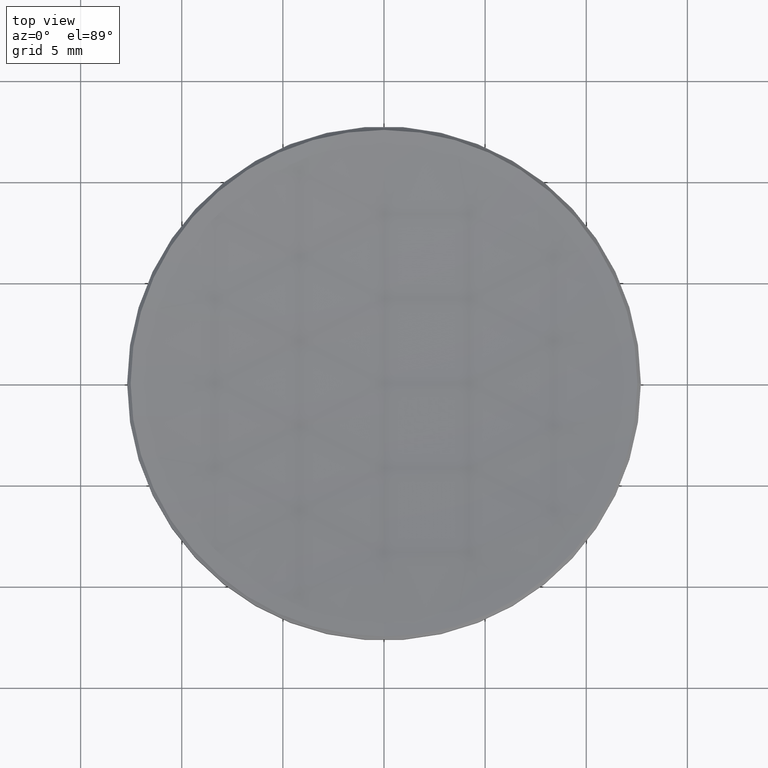
[diagram: clean part render]
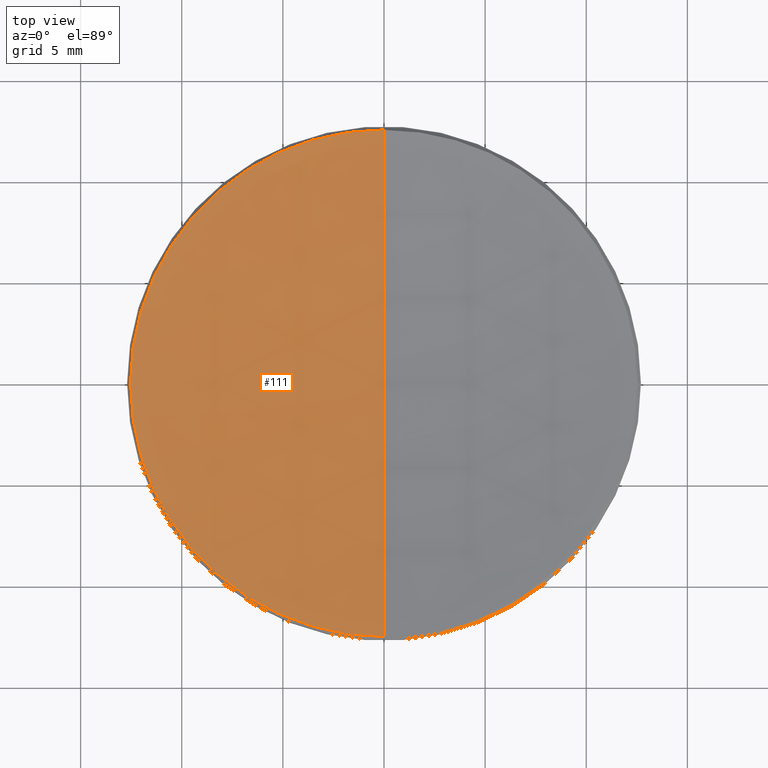
[diagram: same view with one face highlighted and labeled with its STEP entity id]
A machine part, top view. The second image highlights one B-rep face of the part: STEP entity #111.
In plain terms, the highlighted spherical surface has radius 82.23 mm.
Its self-contained STEP definition (entity closure, byte-faithful):
#3 = FACE_OUTER_BOUND ( 'NONE', #309, .T. ) ;
#25 = VERTEX_POINT ( 'NONE', #260 ) ;
#28 = CIRCLE ( 'NONE', #197, 12.52687420083785419 ) ;
#37 = DIRECTION ( 'NONE',  ( -1.224646799147353207E-16, -1.000000000000000000, 0.000000000000000000 ) ) ;
#38 = DIRECTION ( 'NONE',  ( -0.000000000000000000, -0.000000000000000000, 1.000000000000000000 ) ) ;
#43 = CARTESIAN_POINT ( 'NONE',  ( 0.000000000000000000, 0.000000000000000000, 5.973125799162120941 ) ) ;
#48 = AXIS2_PLACEMENT_3D ( 'NONE', #295, #292, #184 ) ;
#59 = CARTESIAN_POINT ( 'NONE',  ( 0.000000000000000000, 0.000000000000000000, 87.24335603604764344 ) ) ;
#73 = VERTEX_POINT ( 'NONE', #148 ) ;
#87 = EDGE_CURVE ( 'NONE', #73, #25, #28, .T. ) ;
#89 = DIRECTION ( 'NONE',  ( -0.000000000000000000, -0.000000000000000000, 1.000000000000000000 ) ) ;
#92 = CARTESIAN_POINT ( 'NONE',  ( -1.534099639337759046E-15, -12.52687420083781511, 5.973125799162120941 ) ) ;
#99 = ORIENTED_EDGE ( 'NONE', *, *, #331, .F. ) ;
#100 = CIRCLE ( 'NONE', #291, 82.22999999999998977 ) ;
#103 = DIRECTION ( 'NONE',  ( 0.000000000000000000, 1.000000000000000000, 0.000000000000000000 ) ) ;
#111 = ADVANCED_FACE ( 'NONE', ( #3 ), #128, .F. ) ;
#120 = ORIENTED_EDGE ( 'NONE', *, *, #158, .T. ) ;
#128 = SPHERICAL_SURFACE ( 'NONE', #216, 82.22999999999998977 ) ;
#141 = VERTEX_POINT ( 'NONE', #92 ) ;
#148 = CARTESIAN_POINT ( 'NONE',  ( 0.000000000000000000, 12.52687420083781511, 5.973125799162120941 ) ) ;
#155 = CIRCLE ( 'NONE', #48, 82.22999999999998977 ) ;
#158 = EDGE_CURVE ( 'NONE', #25, #141, #205, .T. ) ;
#172 = DIRECTION ( 'NONE',  ( 1.000000000000000000, 0.000000000000000000, 0.000000000000000000 ) ) ;
#184 = DIRECTION ( 'NONE',  ( 0.000000000000000000, 0.000000000000000000, -1.000000000000000000 ) ) ;
#190 = CARTESIAN_POINT ( 'NONE',  ( 0.000000000000000000, 5.035135314694341706E-15, 5.013356036047661668 ) ) ;
#197 = AXIS2_PLACEMENT_3D ( 'NONE', #203, #38, #172 ) ;
#203 = CARTESIAN_POINT ( 'NONE',  ( 0.000000000000000000, 0.000000000000000000, 5.973125799162120941 ) ) ;
#205 = CIRCLE ( 'NONE', #301, 12.52687420083785419 ) ;
#216 = AXIS2_PLACEMENT_3D ( 'NONE', #59, #312, #103 ) ;
#229 = EDGE_CURVE ( 'NONE', #310, #73, #155, .T. ) ;
#231 = DIRECTION ( 'NONE',  ( -1.000000000000000000, 1.224646799147353207E-16, 0.000000000000000000 ) ) ;
#237 = DIRECTION ( 'NONE',  ( 1.000000000000000000, 0.000000000000000000, 0.000000000000000000 ) ) ;
#247 = ORIENTED_EDGE ( 'NONE', *, *, #87, .T. ) ;
#260 = CARTESIAN_POINT ( 'NONE',  ( -12.52687420083785419, 0.000000000000000000, 5.973125799162120941 ) ) ;
#291 = AXIS2_PLACEMENT_3D ( 'NONE', #314, #231, #37 ) ;
#292 = DIRECTION ( 'NONE',  ( 1.000000000000000000, 0.000000000000000000, 0.000000000000000000 ) ) ;
#295 = CARTESIAN_POINT ( 'NONE',  ( 0.000000000000000000, 0.000000000000000000, 87.24335603604764344 ) ) ;
#301 = AXIS2_PLACEMENT_3D ( 'NONE', #43, #89, #237 ) ;
#309 = EDGE_LOOP ( 'NONE', ( #99, #328, #247, #120 ) ) ;
#310 = VERTEX_POINT ( 'NONE', #190 ) ;
#312 = DIRECTION ( 'NONE',  ( -1.000000000000000000, 0.000000000000000000, 0.000000000000000000 ) ) ;
#314 = CARTESIAN_POINT ( 'NONE',  ( 0.000000000000000000, 0.000000000000000000, 87.24335603604764344 ) ) ;
#328 = ORIENTED_EDGE ( 'NONE', *, *, #229, .T. ) ;
#331 = EDGE_CURVE ( 'NONE', #310, #141, #100, .T. ) ;